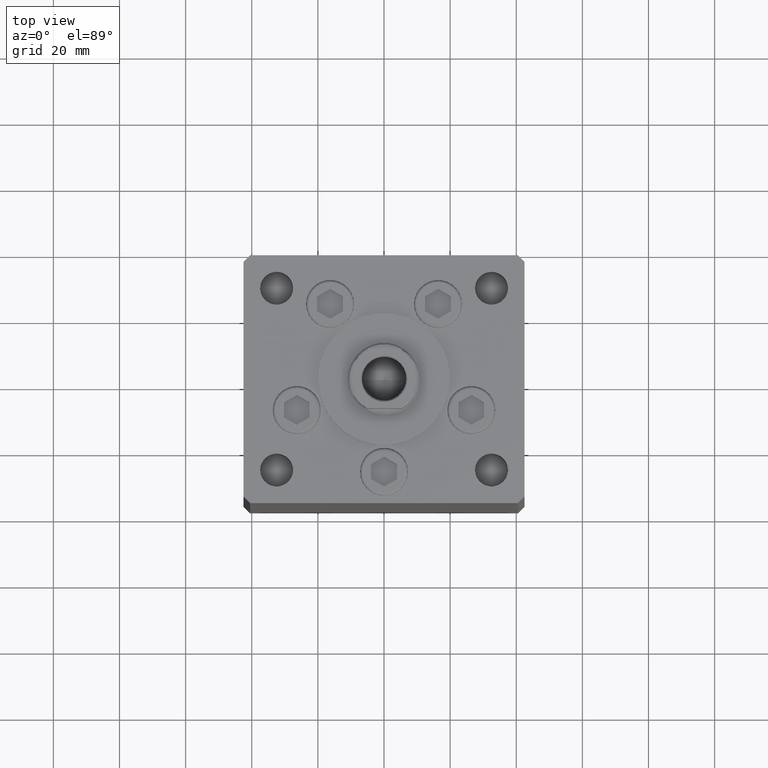
[diagram: clean part render]
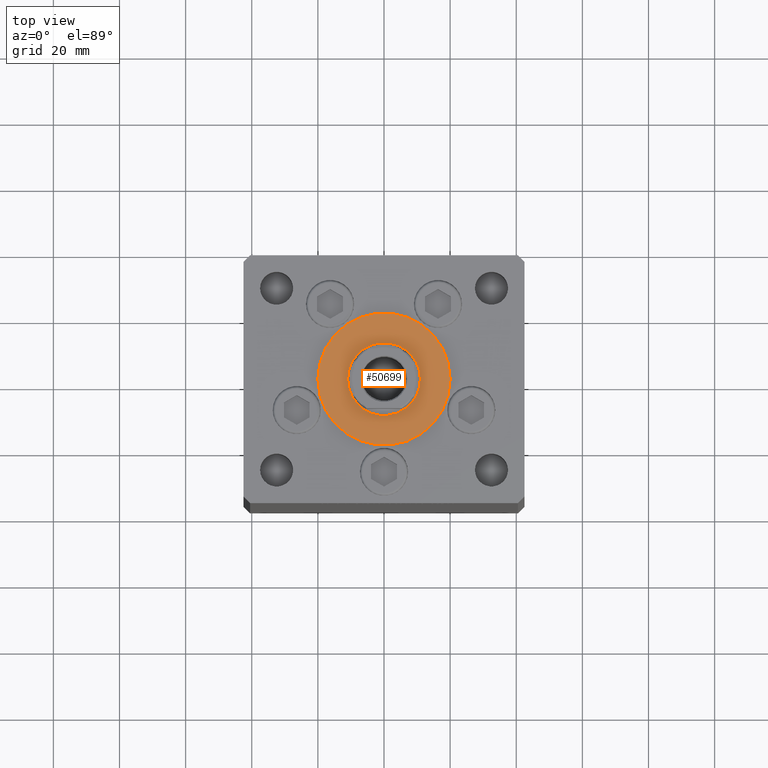
[diagram: same view with one face highlighted and labeled with its STEP entity id]
A machine part, top view. The second image highlights one B-rep face of the part: STEP entity #50699.
In plain terms, the highlighted planar face has unit normal (0, 0, 1).
Its self-contained STEP definition (entity closure, byte-faithful):
#1048 = CARTESIAN_POINT ( 'NONE',  ( 20.00000000000000000, -4.489600305612522259E-15, 2.000000000000000000 ) ) ;
#4614 = DIRECTION ( 'NONE',  ( 1.000000000000000000, 0.000000000000000000, 0.000000000000000000 ) ) ;
#5457 = ORIENTED_EDGE ( 'NONE', *, *, #39752, .F. ) ;
#6211 = AXIS2_PLACEMENT_3D ( 'NONE', #26317, #15931, #18407 ) ;
#8047 = DIRECTION ( 'NONE',  ( 1.000000000000000000, 0.000000000000000000, 0.000000000000000000 ) ) ;
#10216 = AXIS2_PLACEMENT_3D ( 'NONE', #43908, #40733, #8047 ) ;
#11945 = ORIENTED_EDGE ( 'NONE', *, *, #14276, .T. ) ;
#13466 = DIRECTION ( 'NONE',  ( 1.000000000000000000, 0.000000000000000000, 0.000000000000000000 ) ) ;
#13885 = VERTEX_POINT ( 'NONE', #35296 ) ;
#14276 = EDGE_CURVE ( 'NONE', #13885, #18811, #23178, .T. ) ;
#14601 = EDGE_LOOP ( 'NONE', ( #11945, #44103 ) ) ;
#15931 = DIRECTION ( 'NONE',  ( 0.000000000000000000, 0.000000000000000000, 1.000000000000000000 ) ) ;
#17219 = VERTEX_POINT ( 'NONE', #33852 ) ;
#18232 = AXIS2_PLACEMENT_3D ( 'NONE', #23515, #24021, #31671 ) ;
#18407 = DIRECTION ( 'NONE',  ( 1.000000000000000000, 0.000000000000000000, -0.000000000000000000 ) ) ;
#18811 = VERTEX_POINT ( 'NONE', #1048 ) ;
#19826 = CARTESIAN_POINT ( 'NONE',  ( 11.00000000000000000, -6.938893903907228378E-15, 2.000000000000000000 ) ) ;
#21548 = EDGE_CURVE ( 'NONE', #18811, #13885, #47796, .T. ) ;
#23178 = CIRCLE ( 'NONE', #40004, 20.00000000000000000 ) ;
#23515 = CARTESIAN_POINT ( 'NONE',  ( 0.000000000000000000, -6.938893903907228378E-15, 2.000000000000000000 ) ) ;
#23650 = CIRCLE ( 'NONE', #10216, 11.00000000000000000 ) ;
#24021 = DIRECTION ( 'NONE',  ( 0.000000000000000000, 0.000000000000000000, 1.000000000000000000 ) ) ;
#24668 = CARTESIAN_POINT ( 'NONE',  ( 0.000000000000000000, -6.938893903907228378E-15, 2.000000000000000000 ) ) ;
#26317 = CARTESIAN_POINT ( 'NONE',  ( 0.000000000000000000, -6.938893903907228378E-15, 2.000000000000000000 ) ) ;
#28785 = CIRCLE ( 'NONE', #35533, 11.00000000000000000 ) ;
#31671 = DIRECTION ( 'NONE',  ( 1.000000000000000000, 0.000000000000000000, 0.000000000000000000 ) ) ;
#33852 = CARTESIAN_POINT ( 'NONE',  ( -11.00000000000000000, -5.591782424845139381E-15, 2.000000000000000000 ) ) ;
#33945 = VERTEX_POINT ( 'NONE', #19826 ) ;
#35296 = CARTESIAN_POINT ( 'NONE',  ( -20.00000000000000000, -6.938893903907228378E-15, 2.000000000000000000 ) ) ;
#35449 = EDGE_CURVE ( 'NONE', #17219, #33945, #23650, .T. ) ;
#35533 = AXIS2_PLACEMENT_3D ( 'NONE', #50351, #49829, #13466 ) ;
#35711 = FACE_OUTER_BOUND ( 'NONE', #14601, .T. ) ;
#38440 = PLANE ( 'NONE',  #6211 ) ;
#39752 = EDGE_CURVE ( 'NONE', #33945, #17219, #28785, .T. ) ;
#40004 = AXIS2_PLACEMENT_3D ( 'NONE', #24668, #40740, #4614 ) ;
#40733 = DIRECTION ( 'NONE',  ( 0.000000000000000000, 0.000000000000000000, 1.000000000000000000 ) ) ;
#40740 = DIRECTION ( 'NONE',  ( 0.000000000000000000, 0.000000000000000000, 1.000000000000000000 ) ) ;
#43908 = CARTESIAN_POINT ( 'NONE',  ( 0.000000000000000000, -6.938893903907228378E-15, 2.000000000000000000 ) ) ;
#44103 = ORIENTED_EDGE ( 'NONE', *, *, #21548, .T. ) ;
#45365 = ORIENTED_EDGE ( 'NONE', *, *, #35449, .F. ) ;
#47164 = EDGE_LOOP ( 'NONE', ( #5457, #45365 ) ) ;
#47796 = CIRCLE ( 'NONE', #18232, 20.00000000000000000 ) ;
#49829 = DIRECTION ( 'NONE',  ( 0.000000000000000000, 0.000000000000000000, 1.000000000000000000 ) ) ;
#50351 = CARTESIAN_POINT ( 'NONE',  ( 0.000000000000000000, -6.938893903907228378E-15, 2.000000000000000000 ) ) ;
#50699 = ADVANCED_FACE ( 'NONE', ( #51798, #35711 ), #38440, .T. ) ;
#51798 = FACE_BOUND ( 'NONE', #47164, .T. ) ;